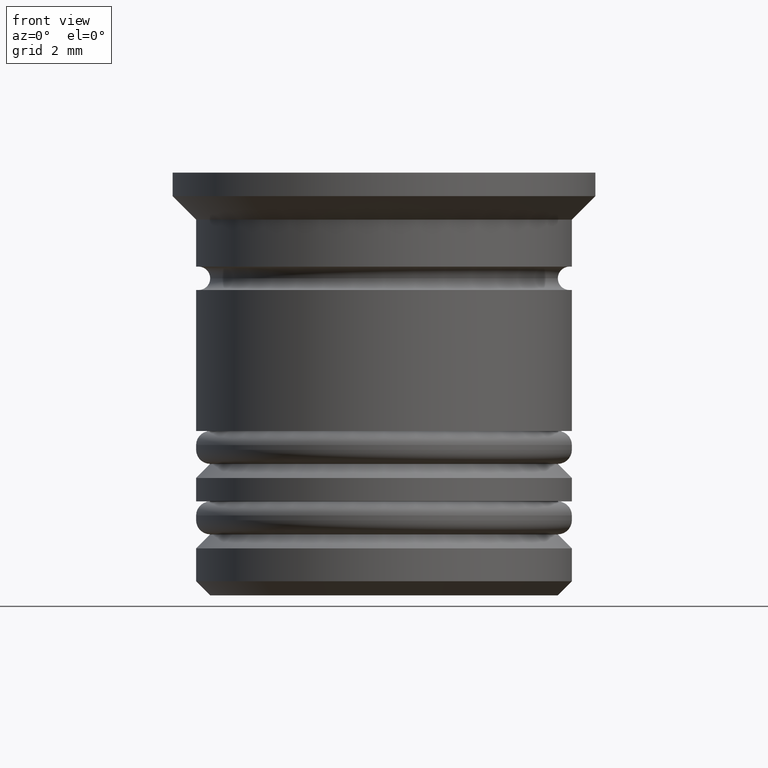
[diagram: clean part render]
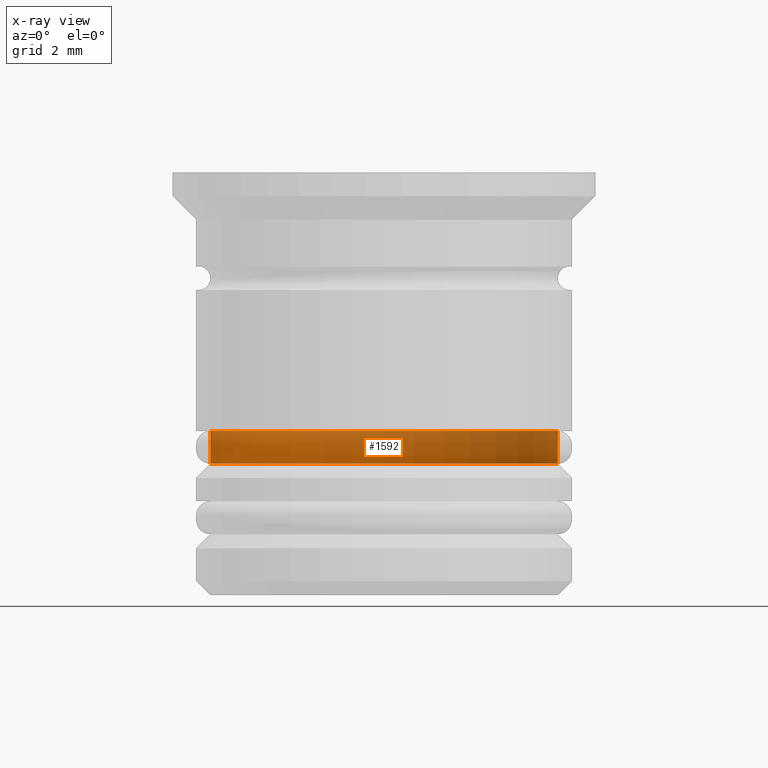
[diagram: x-ray — body ghosted, one internal face saturated and labeled with its STEP entity id]
A machine part, front view, then the same camera in x-ray: the body is ghosted and one INTERNAL B-rep face — a face not visible from any outside direction — is saturated and labeled: STEP entity #1592.
In plain terms, the highlighted cylindrical surface (partial cylindrical patch) has radius 3.7 mm, axis along (-0, -0, 1).
Its self-contained STEP definition (entity closure, byte-faithful):
#48 = VERTEX_POINT ( 'NONE', #302 ) ;
#51 = DIRECTION ( 'NONE',  ( 1.000000000000000000, 0.000000000000000000, 0.000000000000000000 ) ) ;
#112 = EDGE_CURVE ( 'NONE', #893, #638, #1369, .T. ) ;
#170 = DIRECTION ( 'NONE',  ( -0.000000000000000000, -0.000000000000000000, 1.000000000000000000 ) ) ;
#193 = DIRECTION ( 'NONE',  ( -0.000000000000000000, -0.000000000000000000, 1.000000000000000000 ) ) ;
#230 = CARTESIAN_POINT ( 'NONE',  ( -3.700000000000000178, 4.531193156845206201E-16, -5.500000000000000000 ) ) ;
#286 = CARTESIAN_POINT ( 'NONE',  ( -3.700000000000000178, 4.531193156845206201E-16, 0.000000000000000000 ) ) ;
#302 = CARTESIAN_POINT ( 'NONE',  ( 3.700000000000000178, 0.000000000000000000, -5.500000000000000000 ) ) ;
#304 = DIRECTION ( 'NONE',  ( -0.000000000000000000, -0.000000000000000000, 1.000000000000000000 ) ) ;
#350 = FACE_OUTER_BOUND ( 'NONE', #968, .T. ) ;
#399 = CARTESIAN_POINT ( 'NONE',  ( 3.700000000000000178, 0.000000000000000000, -6.200000000000004619 ) ) ;
#506 = CYLINDRICAL_SURFACE ( 'NONE', #601, 3.700000000000000178 ) ;
#540 = DIRECTION ( 'NONE',  ( -0.000000000000000000, -0.000000000000000000, 1.000000000000000000 ) ) ;
#545 = VERTEX_POINT ( 'NONE', #230 ) ;
#601 = AXIS2_PLACEMENT_3D ( 'NONE', #850, #703, #1749 ) ;
#638 = VERTEX_POINT ( 'NONE', #1861 ) ;
#642 = CARTESIAN_POINT ( 'NONE',  ( 0.000000000000000000, 0.000000000000000000, -6.200000000000004619 ) ) ;
#703 = DIRECTION ( 'NONE',  ( -0.000000000000000000, -0.000000000000000000, 1.000000000000000000 ) ) ;
#792 = ORIENTED_EDGE ( 'NONE', *, *, #796, .T. ) ;
#796 = EDGE_CURVE ( 'NONE', #638, #545, #1681, .T. ) ;
#850 = CARTESIAN_POINT ( 'NONE',  ( 0.000000000000000000, 0.000000000000000000, 0.000000000000000000 ) ) ;
#893 = VERTEX_POINT ( 'NONE', #399 ) ;
#967 = AXIS2_PLACEMENT_3D ( 'NONE', #642, #170, #1126 ) ;
#968 = EDGE_LOOP ( 'NONE', ( #1541, #792, #1759, #1891 ) ) ;
#996 = CARTESIAN_POINT ( 'NONE',  ( 3.700000000000000178, 0.000000000000000000, 0.000000000000000000 ) ) ;
#1004 = CARTESIAN_POINT ( 'NONE',  ( 0.000000000000000000, 0.000000000000000000, -5.500000000000000000 ) ) ;
#1126 = DIRECTION ( 'NONE',  ( -1.000000000000000000, 0.000000000000000000, 0.000000000000000000 ) ) ;
#1172 = EDGE_CURVE ( 'NONE', #48, #545, #1368, .T. ) ;
#1209 = AXIS2_PLACEMENT_3D ( 'NONE', #1004, #193, #51 ) ;
#1368 = CIRCLE ( 'NONE', #1209, 3.700000000000000178 ) ;
#1369 = CIRCLE ( 'NONE', #967, 3.700000000000000178 ) ;
#1435 = VECTOR ( 'NONE', #304, 1000.000000000000000 ) ;
#1541 = ORIENTED_EDGE ( 'NONE', *, *, #112, .T. ) ;
#1592 = ADVANCED_FACE ( 'NONE', ( #350 ), #506, .T. ) ;
#1669 = EDGE_CURVE ( 'NONE', #893, #48, #1935, .T. ) ;
#1681 = LINE ( 'NONE', #286, #1435 ) ;
#1745 = VECTOR ( 'NONE', #540, 1000.000000000000000 ) ;
#1749 = DIRECTION ( 'NONE',  ( 1.000000000000000000, 0.000000000000000000, 0.000000000000000000 ) ) ;
#1759 = ORIENTED_EDGE ( 'NONE', *, *, #1172, .F. ) ;
#1861 = CARTESIAN_POINT ( 'NONE',  ( -3.700000000000000178, 4.531193156845206201E-16, -6.200000000000004619 ) ) ;
#1891 = ORIENTED_EDGE ( 'NONE', *, *, #1669, .F. ) ;
#1935 = LINE ( 'NONE', #996, #1745 ) ;